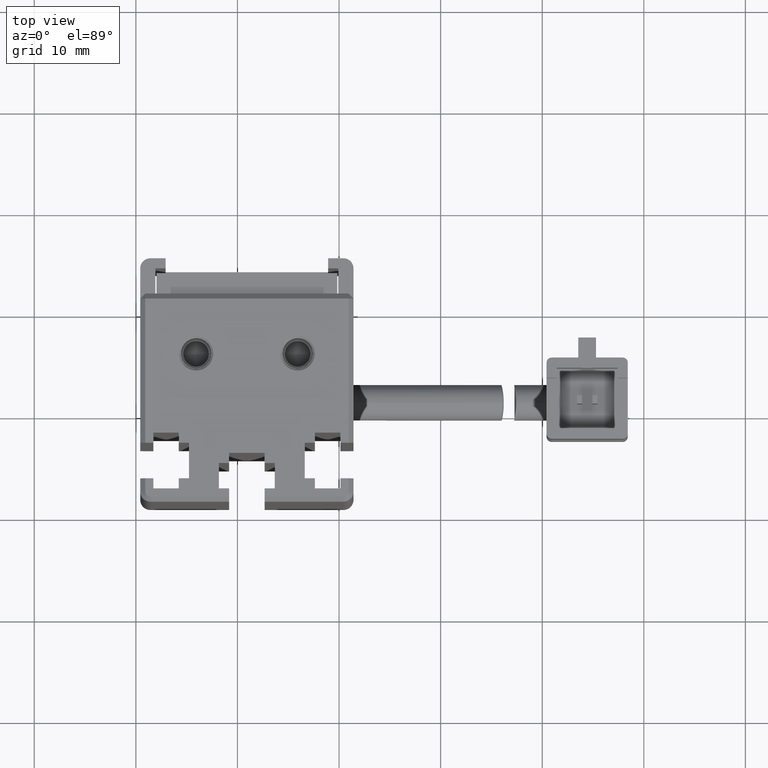
[diagram: clean part render]
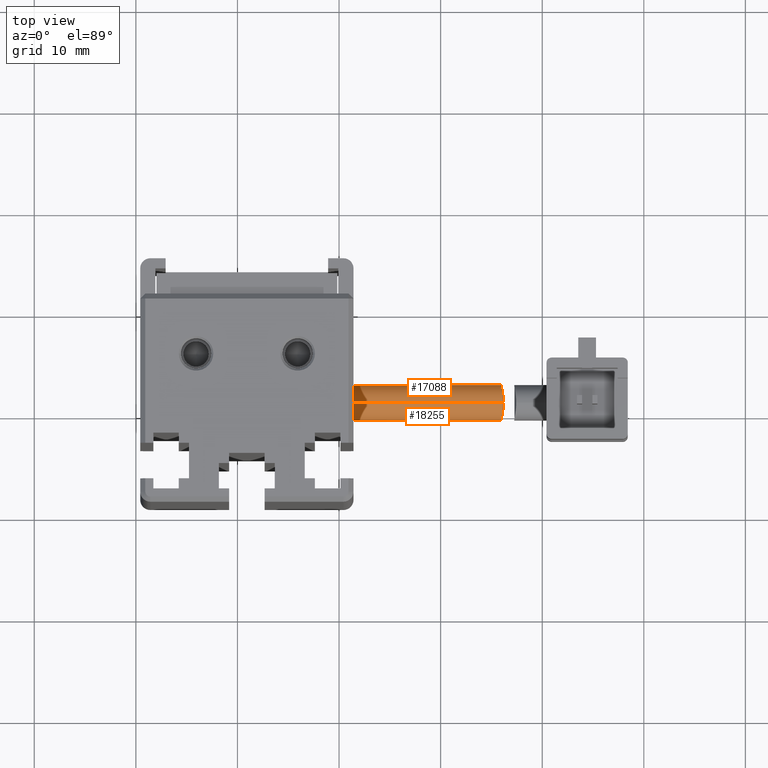
[diagram: same view with one multi-face feature highlighted, each face labeled with its STEP entity id]
A machine part, top view. The highlighted faces form ONE feature: a constant-radius fillet chain: 2 tangent blend faces with common blend radius 1.75 mm. The faces share edges in the B-rep.
Their STEP definitions:
[1] entity #18255 (Cylinder):
#381 = CARTESIAN_POINT ( 'NONE',  ( 51.42537974683536100, 21.49073232304853300, -137.2000000000000200 ) ) ;
#563 = CARTESIAN_POINT ( 'NONE',  ( 65.97280863591524300, 19.79670929018426400, -134.9961834804894400 ) ) ;
#886 = EDGE_LOOP ( 'NONE', ( #37102, #21157, #10109, #8551 ) ) ;
#936 = CARTESIAN_POINT ( 'NONE',  ( 66.06345805648925300, 20.33446100659061200, -134.1313984176798900 ) ) ;
#2068 = EDGE_CURVE ( 'NONE', #12804, #23411, #36835, .T. ) ;
#2270 = CARTESIAN_POINT ( 'NONE',  ( 51.42537974683536100, 21.49073232304850800, -133.7000000000000200 ) ) ;
#2898 = CARTESIAN_POINT ( 'NONE',  ( 66.20621967933267600, 21.37467942352718700, -137.1999999999999900 ) ) ;
#3553 = DIRECTION ( 'NONE',  ( 0.0000000000000000000, 0.0000000000000000000, 1.000000000000000000 ) ) ;
#3591 = CARTESIAN_POINT ( 'NONE',  ( 66.16091813003936300, 20.61255936552064200, -136.9680184145168500 ) ) ;
#3961 = CARTESIAN_POINT ( 'NONE',  ( 65.99681660540062500, 19.96193764474621100, -134.5678160555280000 ) ) ;
#4298 = VERTEX_POINT ( 'NONE', #20532 ) ;
#6822 = CARTESIAN_POINT ( 'NONE',  ( 66.18822953472890400, 20.92490558211200700, -137.1099719075165000 ) ) ;
#8294 = EDGE_CURVE ( 'NONE', #4298, #33756, #13148, .T. ) ;
#8331 = DIRECTION ( 'NONE',  ( 0.0000000000000000000, 0.0000000000000000000, 1.000000000000000000 ) ) ;
#8551 = ORIENTED_EDGE ( 'NONE', *, *, #2068, .T. ) ;
#9653 = CARTESIAN_POINT ( 'NONE',  ( 66.16909918599567700, 21.49073232304855800, -133.7000000000000200 ) ) ;
#9828 = CARTESIAN_POINT ( 'NONE',  ( 66.16909918599569100, 21.25857035714853900, -133.7000000000000500 ) ) ;
#9949 = CARTESIAN_POINT ( 'NONE',  ( 66.10631114892369500, 20.61124924129202500, -133.9327861123732100 ) ) ;
#10077 = CARTESIAN_POINT ( 'NONE',  ( 71.42537974683536100, 21.49073232304857600, -137.2000000000000200 ) ) ;
#10094 = FACE_OUTER_BOUND ( 'NONE', #886, .T. ) ;
#10109 = ORIENTED_EDGE ( 'NONE', *, *, #36920, .T. ) ;
#11191 = DIRECTION ( 'NONE',  ( -1.000000000000000000, -3.304235192336770000E-015, -8.579261317967046800E-031 ) ) ;
#12804 = VERTEX_POINT ( 'NONE', #2270 ) ;
#12818 = CARTESIAN_POINT ( 'NONE',  ( 66.15457117823017100, 21.02994706544156900, -133.7463689643743100 ) ) ;
#13090 = CARTESIAN_POINT ( 'NONE',  ( 66.17117312302134700, 20.71299618687269700, -137.0218756747875700 ) ) ;
#13148 = B_SPLINE_CURVE_WITH_KNOTS ( 'NONE', 3,
 ( #33086, #2898, #15692, #36651, #6822, #13090, #3591, #27806, #15833, #16076, #33664, #21501, #37023, #18711, #18586, #563, #18842, #3961, #27946, #936, #24509, #9949, #30810, #12818, #9828, #34034 ),
 .UNSPECIFIED., .F., .F.,
 ( 4, 2, 2, 2, 2, 2, 2, 2, 2, 2, 2, 2, 4 ),
 ( 2.081668171172168500E-017, 0.0003431607499797082300, 0.0006863214999593956500, 0.001029482249939083300, 0.001372642999918770500, 0.002058964499878157900, 0.002745285999837544900, 0.003088446749817196100, 0.003431607499796847300, 0.004117928999756225600, 0.004461089749735919700, 0.004804250499715612100, 0.005490571999674979600 ),
 .UNSPECIFIED. ) ;
#13206 = AXIS2_PLACEMENT_3D ( 'NONE', #26291, #11191, #8331 ) ;
#14944 = DIRECTION ( 'NONE',  ( -1.000000000000000000, -3.304235192336770000E-015, -8.579261317967046800E-031 ) ) ;
#15692 = CARTESIAN_POINT ( 'NONE',  ( 66.20390138008309600, 21.26062417110182400, -137.1885704476976000 ) ) ;
#15833 = CARTESIAN_POINT ( 'NONE',  ( 66.12460940034066000, 20.33289083467249400, -136.7671338581188000 ) ) ;
#16076 = CARTESIAN_POINT ( 'NONE',  ( 66.08432375002451000, 20.09174899000161200, -136.5256856806185200 ) ) ;
#16573 = DIRECTION ( 'NONE',  ( -1.000000000000000000, -3.304235192336770000E-015, -8.579261317967046800E-031 ) ) ;
#18070 = CARTESIAN_POINT ( 'NONE',  ( 71.42537974683536100, 21.49073232304857600, -133.7000000000000200 ) ) ;
#18255 = ADVANCED_FACE ( 'NONE', ( #10094 ), #34913, .T. ) ;
#18539 = DIRECTION ( 'NONE',  ( 1.000000000000000000, 3.304235192336770000E-015, 8.579261317967046800E-031 ) ) ;
#18586 = CARTESIAN_POINT ( 'NONE',  ( 65.97065476178855200, 19.75195885195751100, -135.2212418624716300 ) ) ;
#18676 = CARTESIAN_POINT ( 'NONE',  ( 51.42537974683536100, 21.49073232304850800, -135.4500000000000200 ) ) ;
#18711 = CARTESIAN_POINT ( 'NONE',  ( 65.97252778088122200, 19.74059244864715300, -135.3377076749584100 ) ) ;
#18842 = CARTESIAN_POINT ( 'NONE',  ( 65.97674975456151000, 19.82986165832780000, -134.8867513380907900 ) ) ;
#20532 = CARTESIAN_POINT ( 'NONE',  ( 66.20621967933266200, 21.49073232304855800, -137.1999999999999900 ) ) ;
#20605 = VECTOR ( 'NONE', #14944, 1000.000000000000000 ) ;
#20726 = AXIS2_PLACEMENT_3D ( 'NONE', #18676, #18539, #3553 ) ;
#21157 = ORIENTED_EDGE ( 'NONE', *, *, #8294, .T. ) ;
#21484 = EDGE_CURVE ( 'NONE', #4298, #23411, #32433, .T. ) ;
#21501 = CARTESIAN_POINT ( 'NONE',  ( 66.00588664361791300, 19.78737048454823700, -135.9112699601981000 ) ) ;
#23411 = VERTEX_POINT ( 'NONE', #381 ) ;
#23520 = VECTOR ( 'NONE', #16573, 1000.000000000000000 ) ;
#24509 = CARTESIAN_POINT ( 'NONE',  ( 66.07810076657452200, 20.42231531355382800, -134.0593477912411200 ) ) ;
#26291 = CARTESIAN_POINT ( 'NONE',  ( 71.42537974683536100, 21.49073232304857600, -135.4500000000000200 ) ) ;
#27806 = CARTESIAN_POINT ( 'NONE',  ( 66.13767043200717000, 20.42254390752244200, -136.8408778375836900 ) ) ;
#27946 = CARTESIAN_POINT ( 'NONE',  ( 66.02121001940464900, 20.09098345961682200, -134.3748734586274900 ) ) ;
#30810 = CARTESIAN_POINT ( 'NONE',  ( 66.11999622660434300, 20.71354430800201000, -133.8778917883745400 ) ) ;
#32433 = LINE ( 'NONE', #10077, #23520 ) ;
#33086 = CARTESIAN_POINT ( 'NONE',  ( 66.20621967933266200, 21.49073232304855800, -137.1999999999999900 ) ) ;
#33664 = CARTESIAN_POINT ( 'NONE',  ( 66.05492220013285000, 19.96182696463409200, -136.3312831179887000 ) ) ;
#33756 = VERTEX_POINT ( 'NONE', #9653 ) ;
#34034 = CARTESIAN_POINT ( 'NONE',  ( 66.16909918599567700, 21.49073232304855800, -133.7000000000000200 ) ) ;
#34913 = CYLINDRICAL_SURFACE ( 'NONE', #13206, 1.750000000000001600 ) ;
#36651 = CARTESIAN_POINT ( 'NONE',  ( 66.19496276555766200, 21.03633168118914700, -137.1438409074873400 ) ) ;
#36835 = CIRCLE ( 'NONE', #20726, 1.750000000000001600 ) ;
#36920 = EDGE_CURVE ( 'NONE', #33756, #12804, #38829, .T. ) ;
#37023 = CARTESIAN_POINT ( 'NONE',  ( 65.98599951797790200, 19.74101606756723400, -135.6810619186153100 ) ) ;
#37102 = ORIENTED_EDGE ( 'NONE', *, *, #21484, .F. ) ;
#38829 = LINE ( 'NONE', #18070, #20605 ) ;
[2] entity #17088 (Cylinder):
#381 = CARTESIAN_POINT ( 'NONE',  ( 51.42537974683536100, 21.49073232304853300, -137.2000000000000200 ) ) ;
#703 = ORIENTED_EDGE ( 'NONE', *, *, #11181, .T. ) ;
#1167 = CARTESIAN_POINT ( 'NONE',  ( 51.42537974683536100, 21.49073232304850800, -135.4500000000000200 ) ) ;
#2163 = DIRECTION ( 'NONE',  ( -1.000000000000000000, -3.304235192336770000E-015, -8.579261317967046800E-031 ) ) ;
#2263 = CARTESIAN_POINT ( 'NONE',  ( 65.96799919059766600, 23.24061665153340400, -135.2199166147517800 ) ) ;
#2270 = CARTESIAN_POINT ( 'NONE',  ( 51.42537974683536100, 21.49073232304850800, -133.7000000000000200 ) ) ;
#3950 = EDGE_LOOP ( 'NONE', ( #703, #37662, #33184, #26217 ) ) ;
#4298 = VERTEX_POINT ( 'NONE', #20532 ) ;
#5011 = CARTESIAN_POINT ( 'NONE',  ( 66.16064130294124400, 22.37141064514802100, -136.9665380968415300 ) ) ;
#5143 = CARTESIAN_POINT ( 'NONE',  ( 66.07835221810198300, 22.55760743916209400, -134.0581316121933400 ) ) ;
#5400 = CARTESIAN_POINT ( 'NONE',  ( 66.20621967933266200, 21.49073232304855800, -137.1999999999999900 ) ) ;
#7996 = CARTESIAN_POINT ( 'NONE',  ( 66.20621967933264800, 21.72282869244823500, -137.1999999999999600 ) ) ;
#8130 = CARTESIAN_POINT ( 'NONE',  ( 65.98134991565429200, 23.24078982580402600, -135.5637194744111600 ) ) ;
#8510 = CARTESIAN_POINT ( 'NONE',  ( 66.16909918599564800, 21.60680859003607800, -133.6999999999999600 ) ) ;
#9653 = CARTESIAN_POINT ( 'NONE',  ( 66.16909918599567700, 21.49073232304855800, -133.7000000000000200 ) ) ;
#10077 = CARTESIAN_POINT ( 'NONE',  ( 71.42537974683536100, 21.49073232304857600, -137.2000000000000200 ) ) ;
#11114 = CARTESIAN_POINT ( 'NONE',  ( 66.10664507071447800, 22.36783389789094300, -133.9313779437375400 ) ) ;
#11181 = EDGE_CURVE ( 'NONE', #33756, #4298, #28257, .T. ) ;
#11237 = CARTESIAN_POINT ( 'NONE',  ( 66.14312513808744100, 22.05618387698943300, -133.7899194494976600 ) ) ;
#12804 = VERTEX_POINT ( 'NONE', #2270 ) ;
#13159 = EDGE_CURVE ( 'NONE', #23411, #12804, #38090, .T. ) ;
#13182 = DIRECTION ( 'NONE',  ( 1.000000000000000000, 3.304235192336770000E-015, 8.579261317967046800E-031 ) ) ;
#14124 = CARTESIAN_POINT ( 'NONE',  ( 66.02159805663031000, 22.88828370669178000, -134.3725020553220900 ) ) ;
#14253 = CARTESIAN_POINT ( 'NONE',  ( 66.06343873949747100, 22.64709544356476600, -134.1315777397997200 ) ) ;
#14944 = DIRECTION ( 'NONE',  ( -1.000000000000000000, -3.304235192336770000E-015, -8.579261317967046800E-031 ) ) ;
#16158 = DIRECTION ( 'NONE',  ( 0.0000000000000000000, 0.0000000000000000000, 1.000000000000000000 ) ) ;
#16285 = CYLINDRICAL_SURFACE ( 'NONE', #32755, 1.750000000000001600 ) ;
#16573 = DIRECTION ( 'NONE',  ( -1.000000000000000000, -3.304235192336770000E-015, -8.579261317967046800E-031 ) ) ;
#16856 = CARTESIAN_POINT ( 'NONE',  ( 66.00678294115667200, 23.18463344848184700, -135.9041675512315200 ) ) ;
#17088 = ADVANCED_FACE ( 'NONE', ( #27604 ), #16285, .T. ) ;
#17241 = CARTESIAN_POINT ( 'NONE',  ( 65.97024437261939100, 23.19420936625597200, -134.9887505292055900 ) ) ;
#17378 = CARTESIAN_POINT ( 'NONE',  ( 66.12463420223004100, 22.64847476324764100, -136.7673024940898500 ) ) ;
#18070 = CARTESIAN_POINT ( 'NONE',  ( 71.42537974683536100, 21.49073232304857600, -133.7000000000000200 ) ) ;
#19896 = CARTESIAN_POINT ( 'NONE',  ( 66.08400798320374700, 22.89150646391434300, -136.5237529889950000 ) ) ;
#20287 = CARTESIAN_POINT ( 'NONE',  ( 66.05492445293647600, 23.01977546981315800, -136.3316429091015600 ) ) ;
#20411 = CARTESIAN_POINT ( 'NONE',  ( 66.16564187166542900, 21.72081579437508100, -133.7114329739076800 ) ) ;
#20532 = CARTESIAN_POINT ( 'NONE',  ( 66.20621967933266200, 21.49073232304855800, -137.1999999999999900 ) ) ;
#20605 = VECTOR ( 'NONE', #14944, 1000.000000000000000 ) ;
#21139 = AXIS2_PLACEMENT_3D ( 'NONE', #1167, #13182, #16158 ) ;
#21484 = EDGE_CURVE ( 'NONE', #4298, #23411, #32433, .T. ) ;
#22937 = CARTESIAN_POINT ( 'NONE',  ( 66.13743220877901800, 22.56061969415858900, -136.8395406144934700 ) ) ;
#23053 = CARTESIAN_POINT ( 'NONE',  ( 66.16909918599567700, 21.49073232304855800, -133.7000000000000200 ) ) ;
#23314 = CARTESIAN_POINT ( 'NONE',  ( 66.19668055208005300, 21.95177912622206800, -137.1536289975071800 ) ) ;
#23411 = VERTEX_POINT ( 'NONE', #381 ) ;
#23520 = VECTOR ( 'NONE', #16573, 1000.000000000000000 ) ;
#25935 = CARTESIAN_POINT ( 'NONE',  ( 66.17113496622533800, 22.26883414955935700, -137.0216747521505200 ) ) ;
#26217 = ORIENTED_EDGE ( 'NONE', *, *, #36920, .F. ) ;
#27604 = FACE_OUTER_BOUND ( 'NONE', #3950, .T. ) ;
#28257 = B_SPLINE_CURVE_WITH_KNOTS ( 'NONE', 3,
 ( #23053, #8510, #20411, #29357, #11237, #37811, #11114, #5143, #14253, #14124, #34805, #17241, #2263, #8130, #29098, #16856, #35060, #20287, #19896, #17378, #22937, #5011, #25935, #23314, #7996, #5400 ),
 .UNSPECIFIED., .F., .F.,
 ( 4, 2, 2, 2, 2, 2, 2, 2, 2, 2, 2, 2, 4 ),
 ( 0.005490571999674979600, 0.005833718808239048500, 0.006176865616803117400, 0.006520012425367186300, 0.006863159233931255200, 0.007549452851059330500, 0.008235746468187404200, 0.008578893276751483500, 0.008922040085315562800, 0.009608333702443790800, 0.009951480511007904800, 0.01029462731957201900, 0.01098092093670028300 ),
 .UNSPECIFIED. ) ;
#29098 = CARTESIAN_POINT ( 'NONE',  ( 65.98855349268929200, 23.22932324687323200, -135.6799364845565500 ) ) ;
#29357 = CARTESIAN_POINT ( 'NONE',  ( 66.15272929082431100, 21.94491196028725700, -133.7561066842592900 ) ) ;
#32250 = DIRECTION ( 'NONE',  ( 0.0000000000000000000, 0.0000000000000000000, 1.000000000000000000 ) ) ;
#32433 = LINE ( 'NONE', #10077, #23520 ) ;
#32755 = AXIS2_PLACEMENT_3D ( 'NONE', #34834, #2163, #32250 ) ;
#33184 = ORIENTED_EDGE ( 'NONE', *, *, #13159, .T. ) ;
#33756 = VERTEX_POINT ( 'NONE', #9653 ) ;
#34805 = CARTESIAN_POINT ( 'NONE',  ( 65.99693793915955100, 23.01894157653051200, -134.5672986979646500 ) ) ;
#34834 = CARTESIAN_POINT ( 'NONE',  ( 71.42537974683536100, 21.49073232304857600, -135.4500000000000200 ) ) ;
#35060 = CARTESIAN_POINT ( 'NONE',  ( 66.01781632386865800, 23.15157741340437500, -136.0132809039904500 ) ) ;
#36920 = EDGE_CURVE ( 'NONE', #33756, #12804, #38829, .T. ) ;
#37662 = ORIENTED_EDGE ( 'NONE', *, *, #21484, .T. ) ;
#37811 = CARTESIAN_POINT ( 'NONE',  ( 66.12003836585687100, 22.26761315901731600, -133.8777216974355900 ) ) ;
#38090 = CIRCLE ( 'NONE', #21139, 1.750000000000001600 ) ;
#38829 = LINE ( 'NONE', #18070, #20605 ) ;